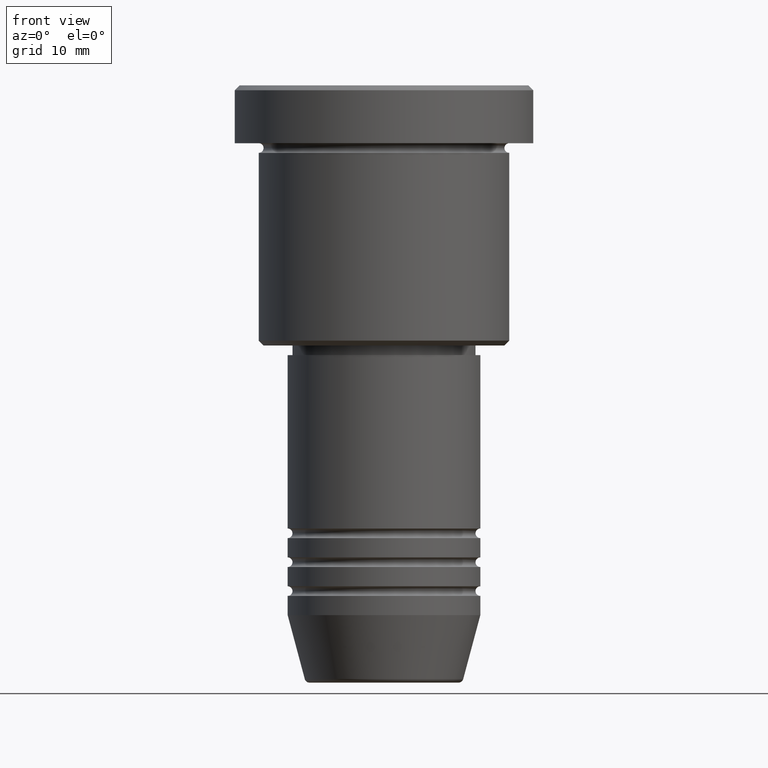
[diagram: clean part render]
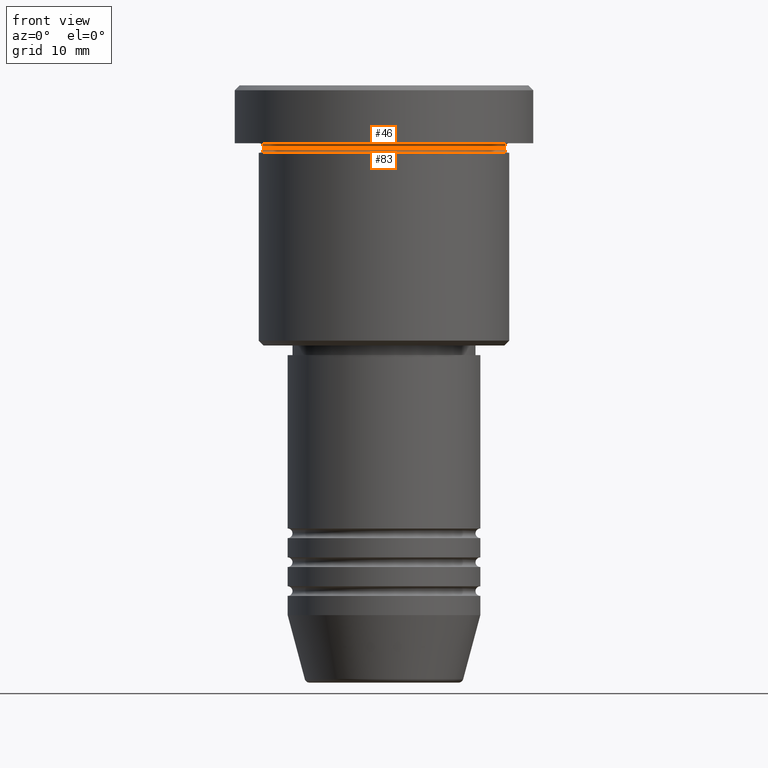
[diagram: same view with one multi-face feature highlighted, each face labeled with its STEP entity id]
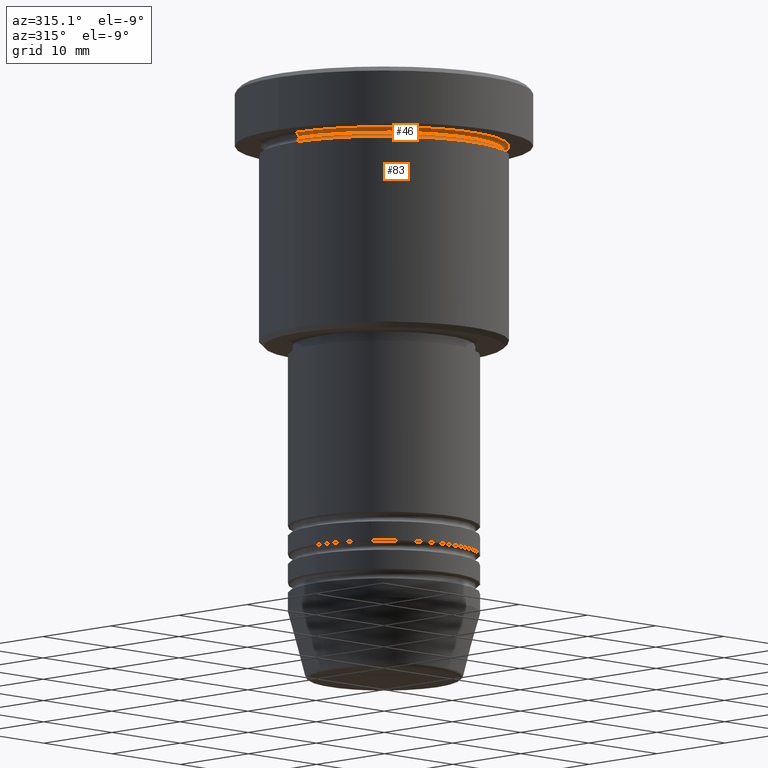
[diagram: same view with one multi-face feature highlighted, each face labeled with its STEP entity id]
A machine part, front view. The highlighted faces form ONE feature: a constant-radius fillet chain: 2 tangent blend faces with common blend radius 0.5 mm. The faces share edges in the B-rep.
A second angle (auxiliary view) of the same feature is appended — it is thin or edge-on in the first view.
Their STEP definitions:
[1] entity #83 (Torus):
#5 = CARTESIAN_POINT ( 'NONE',  ( -12.49999999999999822, 1.561424668912875308E-15, -6.499999999999995559 ) ) ;
#20 = CARTESIAN_POINT ( 'NONE',  ( 0.000000000000000000, 0.000000000000000000, -6.499999999999995559 ) ) ;
#45 = DIRECTION ( 'NONE',  ( -1.000000000000000000, 1.224646799147353454E-16, 0.000000000000000000 ) ) ;
#57 = VERTEX_POINT ( 'NONE', #531 ) ;
#83 = ADVANCED_FACE ( 'NONE', ( #102 ), #312, .F. ) ;
#84 = AXIS2_PLACEMENT_3D ( 'NONE', #20, #565, #818 ) ;
#91 = EDGE_CURVE ( 'NONE', #379, #57, #1121, .T. ) ;
#102 = FACE_OUTER_BOUND ( 'NONE', #655, .T. ) ;
#104 = EDGE_CURVE ( 'NONE', #57, #1091, #387, .T. ) ;
#109 = ORIENTED_EDGE ( 'NONE', *, *, #136, .T. ) ;
#133 = CARTESIAN_POINT ( 'NONE',  ( -13.00000000000000000, 1.592040838891559095E-15, -6.499999999999995559 ) ) ;
#136 = EDGE_CURVE ( 'NONE', #379, #861, #1053, .T. ) ;
#162 = ORIENTED_EDGE ( 'NONE', *, *, #850, .T. ) ;
#200 = CIRCLE ( 'NONE', #962, 13.00000000000000000 ) ;
#204 = DIRECTION ( 'NONE',  ( 0.000000000000000000, 0.000000000000000000, -1.000000000000000000 ) ) ;
#246 = ORIENTED_EDGE ( 'NONE', *, *, #104, .F. ) ;
#312 = TOROIDAL_SURFACE ( 'NONE', #84, 13.00000000000000000, 0.5000000000000000000 ) ;
#337 = DIRECTION ( 'NONE',  ( -0.000000000000000000, -0.000000000000000000, 1.000000000000000000 ) ) ;
#362 = DIRECTION ( 'NONE',  ( 1.000000000000000000, 0.000000000000000000, 0.000000000000000000 ) ) ;
#379 = VERTEX_POINT ( 'NONE', #5 ) ;
#387 = CIRCLE ( 'NONE', #654, 0.5000000000000004441 ) ;
#531 = CARTESIAN_POINT ( 'NONE',  ( 12.49999999999999822, 0.000000000000000000, -6.499999999999995559 ) ) ;
#565 = DIRECTION ( 'NONE',  ( -0.000000000000000000, -0.000000000000000000, 1.000000000000000000 ) ) ;
#617 = CARTESIAN_POINT ( 'NONE',  ( -13.00000000000000000, 1.592040838891559095E-15, -6.999999999999995559 ) ) ;
#654 = AXIS2_PLACEMENT_3D ( 'NONE', #734, #1109, #204 ) ;
#655 = EDGE_LOOP ( 'NONE', ( #742, #109, #162, #246 ) ) ;
#718 = CARTESIAN_POINT ( 'NONE',  ( 13.00000000000000000, 0.000000000000000000, -6.999999999999995559 ) ) ;
#734 = CARTESIAN_POINT ( 'NONE',  ( 13.00000000000000000, 0.000000000000000000, -6.499999999999995559 ) ) ;
#742 = ORIENTED_EDGE ( 'NONE', *, *, #91, .F. ) ;
#818 = DIRECTION ( 'NONE',  ( 1.000000000000000000, 0.000000000000000000, 0.000000000000000000 ) ) ;
#850 = EDGE_CURVE ( 'NONE', #861, #1091, #200, .T. ) ;
#861 = VERTEX_POINT ( 'NONE', #617 ) ;
#866 = DIRECTION ( 'NONE',  ( 1.224646799147353207E-16, 1.000000000000000000, 0.000000000000000000 ) ) ;
#962 = AXIS2_PLACEMENT_3D ( 'NONE', #1155, #337, #971 ) ;
#971 = DIRECTION ( 'NONE',  ( 1.000000000000000000, 0.000000000000000000, 0.000000000000000000 ) ) ;
#997 = AXIS2_PLACEMENT_3D ( 'NONE', #133, #866, #45 ) ;
#1013 = CARTESIAN_POINT ( 'NONE',  ( 0.000000000000000000, 0.000000000000000000, -6.499999999999995559 ) ) ;
#1053 = CIRCLE ( 'NONE', #997, 0.5000000000000004441 ) ;
#1091 = VERTEX_POINT ( 'NONE', #718 ) ;
#1109 = DIRECTION ( 'NONE',  ( 0.000000000000000000, -1.000000000000000000, 0.000000000000000000 ) ) ;
#1121 = CIRCLE ( 'NONE', #1153, 12.49999999999999822 ) ;
#1153 = AXIS2_PLACEMENT_3D ( 'NONE', #1013, #1183, #362 ) ;
#1155 = CARTESIAN_POINT ( 'NONE',  ( 0.000000000000000000, 0.000000000000000000, -6.999999999999995559 ) ) ;
#1183 = DIRECTION ( 'NONE',  ( -0.000000000000000000, -0.000000000000000000, 1.000000000000000000 ) ) ;
[2] entity #46 (Torus):
#5 = CARTESIAN_POINT ( 'NONE',  ( -12.49999999999999822, 1.561424668912875308E-15, -6.499999999999995559 ) ) ;
#46 = ADVANCED_FACE ( 'NONE', ( #886 ), #763, .F. ) ;
#57 = VERTEX_POINT ( 'NONE', #531 ) ;
#91 = EDGE_CURVE ( 'NONE', #379, #57, #1121, .T. ) ;
#252 = CARTESIAN_POINT ( 'NONE',  ( 0.000000000000000000, 0.000000000000000000, -5.999999999999995559 ) ) ;
#273 = DIRECTION ( 'NONE',  ( -0.000000000000000000, -0.000000000000000000, 1.000000000000000000 ) ) ;
#295 = AXIS2_PLACEMENT_3D ( 'NONE', #345, #527, #893 ) ;
#338 = EDGE_CURVE ( 'NONE', #57, #849, #371, .T. ) ;
#339 = ORIENTED_EDGE ( 'NONE', *, *, #615, .F. ) ;
#345 = CARTESIAN_POINT ( 'NONE',  ( 0.000000000000000000, 0.000000000000000000, -6.499999999999995559 ) ) ;
#361 = CARTESIAN_POINT ( 'NONE',  ( -13.00000000000000000, 0.000000000000000000, -6.499999999999995559 ) ) ;
#362 = DIRECTION ( 'NONE',  ( 1.000000000000000000, 0.000000000000000000, 0.000000000000000000 ) ) ;
#371 = CIRCLE ( 'NONE', #729, 0.5000000000000004441 ) ;
#379 = VERTEX_POINT ( 'NONE', #5 ) ;
#409 = ORIENTED_EDGE ( 'NONE', *, *, #91, .T. ) ;
#424 = EDGE_LOOP ( 'NONE', ( #409, #895, #339, #659 ) ) ;
#465 = CIRCLE ( 'NONE', #1127, 0.5000000000000004441 ) ;
#506 = CARTESIAN_POINT ( 'NONE',  ( -13.00000000000000000, 0.000000000000000000, -5.999999999999994671 ) ) ;
#527 = DIRECTION ( 'NONE',  ( 0.000000000000000000, 0.000000000000000000, -1.000000000000000000 ) ) ;
#531 = CARTESIAN_POINT ( 'NONE',  ( 12.49999999999999822, 0.000000000000000000, -6.499999999999995559 ) ) ;
#615 = EDGE_CURVE ( 'NONE', #880, #849, #639, .T. ) ;
#639 = CIRCLE ( 'NONE', #805, 13.00000000000000000 ) ;
#659 = ORIENTED_EDGE ( 'NONE', *, *, #1014, .F. ) ;
#729 = AXIS2_PLACEMENT_3D ( 'NONE', #1028, #738, #942 ) ;
#738 = DIRECTION ( 'NONE',  ( -1.224646799147353207E-16, 1.000000000000000000, 0.000000000000000000 ) ) ;
#763 = TOROIDAL_SURFACE ( 'NONE', #295, 13.00000000000000000, 0.5000000000000000000 ) ;
#783 = CARTESIAN_POINT ( 'NONE',  ( 13.00000000000000000, 1.592040838891559095E-15, -5.999999999999994671 ) ) ;
#805 = AXIS2_PLACEMENT_3D ( 'NONE', #252, #273, #972 ) ;
#849 = VERTEX_POINT ( 'NONE', #783 ) ;
#880 = VERTEX_POINT ( 'NONE', #506 ) ;
#886 = FACE_OUTER_BOUND ( 'NONE', #424, .T. ) ;
#893 = DIRECTION ( 'NONE',  ( -1.000000000000000000, 0.000000000000000000, 0.000000000000000000 ) ) ;
#895 = ORIENTED_EDGE ( 'NONE', *, *, #338, .T. ) ;
#942 = DIRECTION ( 'NONE',  ( -1.000000000000000000, -1.224646799147353454E-16, 0.000000000000000000 ) ) ;
#972 = DIRECTION ( 'NONE',  ( -1.000000000000000000, 0.000000000000000000, 0.000000000000000000 ) ) ;
#995 = DIRECTION ( 'NONE',  ( -0.000000000000000000, -1.000000000000000000, -0.000000000000000000 ) ) ;
#1008 = DIRECTION ( 'NONE',  ( 0.000000000000000000, 0.000000000000000000, -1.000000000000000000 ) ) ;
#1013 = CARTESIAN_POINT ( 'NONE',  ( 0.000000000000000000, 0.000000000000000000, -6.499999999999995559 ) ) ;
#1014 = EDGE_CURVE ( 'NONE', #379, #880, #465, .T. ) ;
#1028 = CARTESIAN_POINT ( 'NONE',  ( 13.00000000000000000, 1.592040838891559095E-15, -6.499999999999995559 ) ) ;
#1121 = CIRCLE ( 'NONE', #1153, 12.49999999999999822 ) ;
#1127 = AXIS2_PLACEMENT_3D ( 'NONE', #361, #995, #1008 ) ;
#1153 = AXIS2_PLACEMENT_3D ( 'NONE', #1013, #1183, #362 ) ;
#1183 = DIRECTION ( 'NONE',  ( -0.000000000000000000, -0.000000000000000000, 1.000000000000000000 ) ) ;